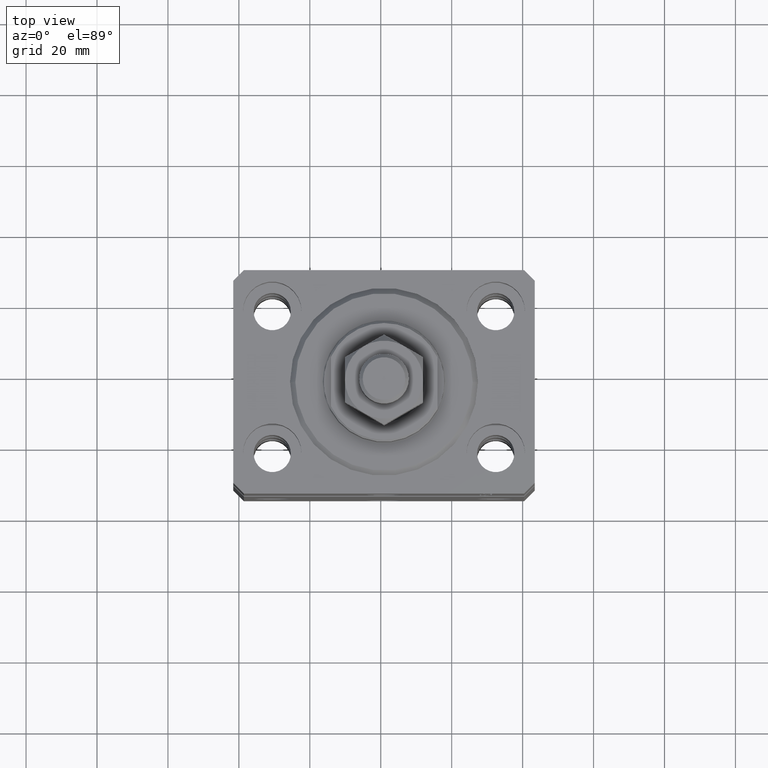
[diagram: clean part render]
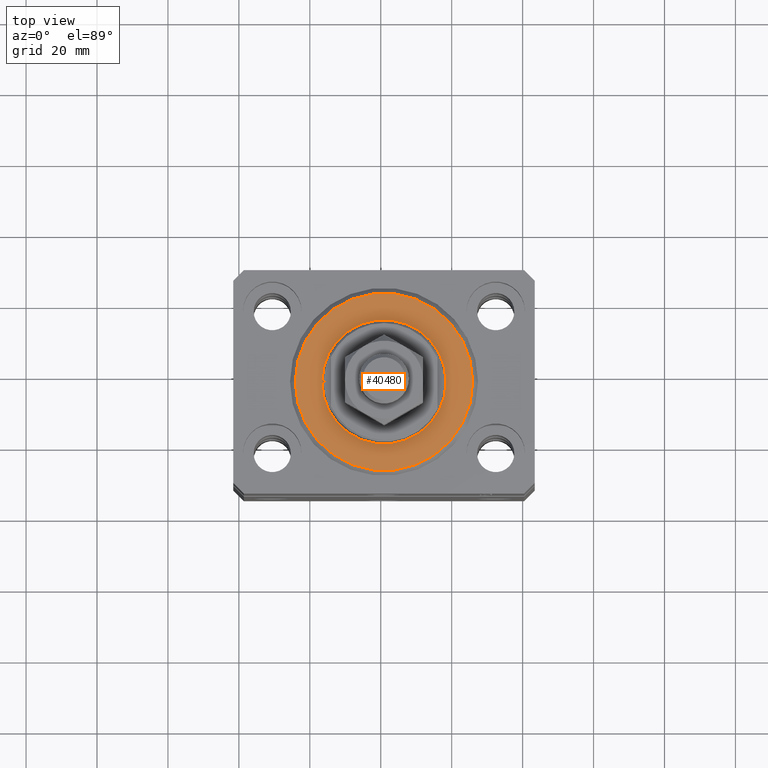
[diagram: same view with one face highlighted and labeled with its STEP entity id]
A machine part, top view. The second image highlights one B-rep face of the part: STEP entity #40480.
In plain terms, the highlighted planar face has unit normal (0, 0, -1).
Its self-contained STEP definition (entity closure, byte-faithful):
#192 = DIRECTION ( 'NONE',  ( 1.000000000000000000, 0.000000000000000000, -0.000000000000000000 ) ) ;
#1168 = ORIENTED_EDGE ( 'NONE', *, *, #21690, .T. ) ;
#1899 = DIRECTION ( 'NONE',  ( 0.000000000000000000, 0.000000000000000000, 1.000000000000000000 ) ) ;
#2099 = CARTESIAN_POINT ( 'NONE',  ( 0.000000000000000000, 0.000000000000000000, 0.000000000000000000 ) ) ;
#2632 = CARTESIAN_POINT ( 'NONE',  ( -17.50000000000000000, 2.143131898507868643E-15, 2.168404344971008868E-16 ) ) ;
#2840 = ORIENTED_EDGE ( 'NONE', *, *, #28596, .T. ) ;
#3432 = EDGE_CURVE ( 'NONE', #32712, #43298, #34268, .T. ) ;
#3996 = CIRCLE ( 'NONE', #30518, 17.50000000000000000 ) ;
#4148 = EDGE_LOOP ( 'NONE', ( #1168, #46479 ) ) ;
#4246 = CARTESIAN_POINT ( 'NONE',  ( 0.000000000000000000, 0.000000000000000000, 0.000000000000000000 ) ) ;
#4479 = PLANE ( 'NONE',  #23032 ) ;
#7061 = CARTESIAN_POINT ( 'NONE',  ( 24.99999999999998224, 0.000000000000000000, 0.000000000000000000 ) ) ;
#9086 = CIRCLE ( 'NONE', #18139, 24.99999999999998224 ) ;
#11452 = CARTESIAN_POINT ( 'NONE',  ( 0.000000000000000000, 0.000000000000000000, 0.000000000000000000 ) ) ;
#11587 = DIRECTION ( 'NONE',  ( 0.000000000000000000, 0.000000000000000000, 1.000000000000000000 ) ) ;
#11818 = FACE_OUTER_BOUND ( 'NONE', #4148, .T. ) ;
#15643 = DIRECTION ( 'NONE',  ( -0.000000000000000000, -0.000000000000000000, -1.000000000000000000 ) ) ;
#16290 = CARTESIAN_POINT ( 'NONE',  ( 17.50000000000000000, 0.000000000000000000, 2.168404344971008868E-16 ) ) ;
#17016 = DIRECTION ( 'NONE',  ( 1.000000000000000000, 0.000000000000000000, 0.000000000000000000 ) ) ;
#17133 = EDGE_CURVE ( 'NONE', #26255, #28684, #9086, .T. ) ;
#17534 = CIRCLE ( 'NONE', #43303, 24.99999999999998224 ) ;
#18139 = AXIS2_PLACEMENT_3D ( 'NONE', #40319, #15643, #26331 ) ;
#18195 = EDGE_LOOP ( 'NONE', ( #31532, #2840 ) ) ;
#19681 = CARTESIAN_POINT ( 'NONE',  ( 0.000000000000000000, 0.000000000000000000, 0.000000000000000000 ) ) ;
#21690 = EDGE_CURVE ( 'NONE', #28684, #26255, #17534, .T. ) ;
#23032 = AXIS2_PLACEMENT_3D ( 'NONE', #4246, #11587, #192 ) ;
#26255 = VERTEX_POINT ( 'NONE', #41771 ) ;
#26331 = DIRECTION ( 'NONE',  ( 1.000000000000000000, 0.000000000000000000, 0.000000000000000000 ) ) ;
#26818 = DIRECTION ( 'NONE',  ( 1.000000000000000000, 0.000000000000000000, 0.000000000000000000 ) ) ;
#28596 = EDGE_CURVE ( 'NONE', #43298, #32712, #3996, .T. ) ;
#28684 = VERTEX_POINT ( 'NONE', #7061 ) ;
#30518 = AXIS2_PLACEMENT_3D ( 'NONE', #2099, #42418, #17016 ) ;
#31532 = ORIENTED_EDGE ( 'NONE', *, *, #3432, .T. ) ;
#32712 = VERTEX_POINT ( 'NONE', #16290 ) ;
#34268 = CIRCLE ( 'NONE', #35790, 17.50000000000000000 ) ;
#35790 = AXIS2_PLACEMENT_3D ( 'NONE', #19681, #1899, #26818 ) ;
#36355 = DIRECTION ( 'NONE',  ( 1.000000000000000000, 0.000000000000000000, 0.000000000000000000 ) ) ;
#36597 = DIRECTION ( 'NONE',  ( -0.000000000000000000, -0.000000000000000000, -1.000000000000000000 ) ) ;
#36960 = FACE_BOUND ( 'NONE', #18195, .T. ) ;
#40319 = CARTESIAN_POINT ( 'NONE',  ( 0.000000000000000000, 0.000000000000000000, 0.000000000000000000 ) ) ;
#40480 = ADVANCED_FACE ( 'NONE', ( #36960, #11818 ), #4479, .F. ) ;
#41771 = CARTESIAN_POINT ( 'NONE',  ( -24.99999999999998224, 3.153465507804433615E-15, 0.000000000000000000 ) ) ;
#42418 = DIRECTION ( 'NONE',  ( 0.000000000000000000, 0.000000000000000000, 1.000000000000000000 ) ) ;
#43298 = VERTEX_POINT ( 'NONE', #2632 ) ;
#43303 = AXIS2_PLACEMENT_3D ( 'NONE', #11452, #36597, #36355 ) ;
#46479 = ORIENTED_EDGE ( 'NONE', *, *, #17133, .T. ) ;